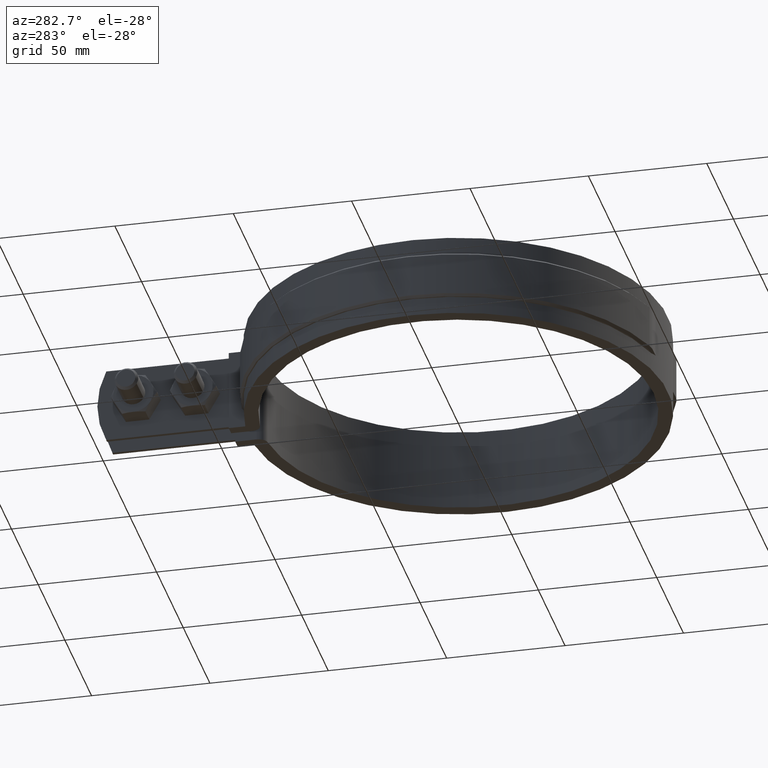
[diagram: clean part render]
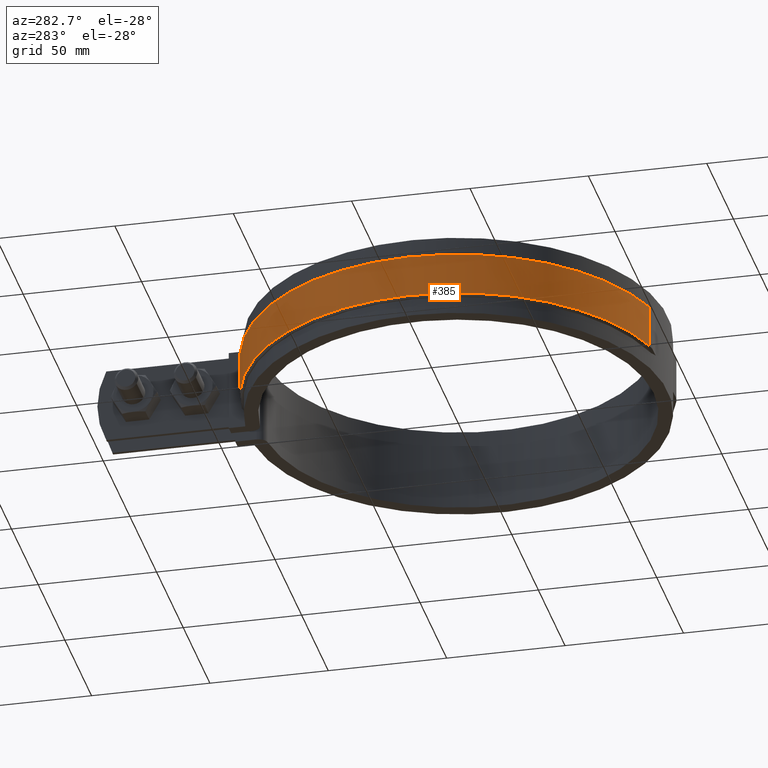
[diagram: same view with one face highlighted and labeled with its STEP entity id]
A machine part, auxiliary view. The second image highlights one B-rep face of the part: STEP entity #385.
In plain terms, the highlighted cylindrical surface (partial cylindrical patch) has radius 90 mm, axis along (0, 0, 1).
Its self-contained STEP definition (entity closure, byte-faithful):
#385 = ADVANCED_FACE( '', ( #629 ), #630, .T. );
#629 = FACE_OUTER_BOUND( '', #1334, .T. );
#630 = CYLINDRICAL_SURFACE( '', #1335, 90.0000000000000 );
#1334 = EDGE_LOOP( '', ( #3229, #3230, #3231, #3232 ) );
#1335 = AXIS2_PLACEMENT_3D( '', #3233, #3234, #3235 );
#3229 = ORIENTED_EDGE( '', *, *, #4847, .T. );
#3230 = ORIENTED_EDGE( '', *, *, #4848, .T. );
#3231 = ORIENTED_EDGE( '', *, *, #4849, .F. );
#3232 = ORIENTED_EDGE( '', *, *, #4850, .T. );
#3233 = CARTESIAN_POINT( '', ( 0.000000000000000, 0.000000000000000, -26.0000000000000 ) );
#3234 = DIRECTION( '', ( 0.000000000000000, 0.000000000000000, 1.00000000000000 ) );
#3235 = DIRECTION( '', ( 0.280000000000000, 0.960000000000000, 0.000000000000000 ) );
#4847 = EDGE_CURVE( '', #5430, #5431, #5432, .T. );
#4848 = EDGE_CURVE( '', #5431, #5433, #5434, .T. );
#4849 = EDGE_CURVE( '', #5435, #5433, #5436, .F. );
#4850 = EDGE_CURVE( '', #5435, #5430, #5437, .T. );
#5430 = VERTEX_POINT( '', #7762 );
#5431 = VERTEX_POINT( '', #7763 );
#5432 = LINE( '', #7764, #7765 );
#5433 = VERTEX_POINT( '', #7766 );
#5434 = CIRCLE( '', #7767, 90.0000000000000 );
#5435 = VERTEX_POINT( '', #7768 );
#5436 = LINE( '', #7769, #7770 );
#5437 = CIRCLE( '', #7771, 90.0000000000000 );
#7762 = CARTESIAN_POINT( '', ( -25.2000000000000, -86.4000000000000, -25.0000000000000 ) );
#7763 = CARTESIAN_POINT( '', ( -25.2000000000000, -86.4000000000000, -6.99999999999999 ) );
#7764 = CARTESIAN_POINT( '', ( -25.2000000000000, -86.4000000000000, -26.0000000000000 ) );
#7765 = VECTOR( '', #8987, 1000.00000000000 );
#7766 = CARTESIAN_POINT( '', ( -8.40000000000000, 89.6071425724534, -7.00000000000000 ) );
#7767 = AXIS2_PLACEMENT_3D( '', #8988, #8989, #8990 );
#7768 = CARTESIAN_POINT( '', ( -8.40000000000000, 89.6071425724534, -25.0000000000000 ) );
#7769 = CARTESIAN_POINT( '', ( -8.40000000000000, 89.6071425724534, -26.0000000000000 ) );
#7770 = VECTOR( '', #8991, 1000.00000000000 );
#7771 = AXIS2_PLACEMENT_3D( '', #8992, #8993, #8994 );
#8987 = DIRECTION( '', ( 0.000000000000000, 0.000000000000000, 1.00000000000000 ) );
#8988 = CARTESIAN_POINT( '', ( 0.000000000000000, 0.000000000000000, -7.00000000000000 ) );
#8989 = DIRECTION( '', ( 0.000000000000000, 0.000000000000000, -1.00000000000000 ) );
#8990 = DIRECTION( '', ( -1.00000000000000, 0.000000000000000, 0.000000000000000 ) );
#8991 = DIRECTION( '', ( 0.000000000000000, 0.000000000000000, -1.00000000000000 ) );
#8992 = CARTESIAN_POINT( '', ( 0.000000000000000, 0.000000000000000, -25.0000000000000 ) );
#8993 = DIRECTION( '', ( 0.000000000000000, 0.000000000000000, 1.00000000000000 ) );
#8994 = DIRECTION( '', ( 1.00000000000000, 0.000000000000000, 0.000000000000000 ) );